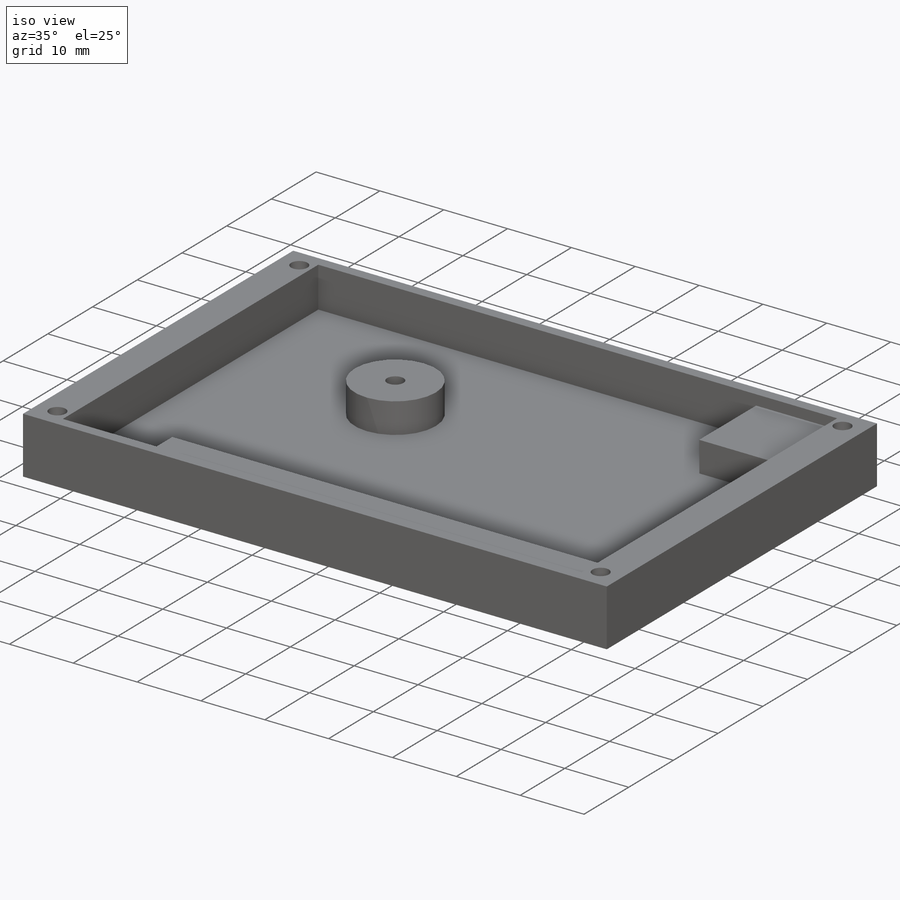
[diagram: iso view]
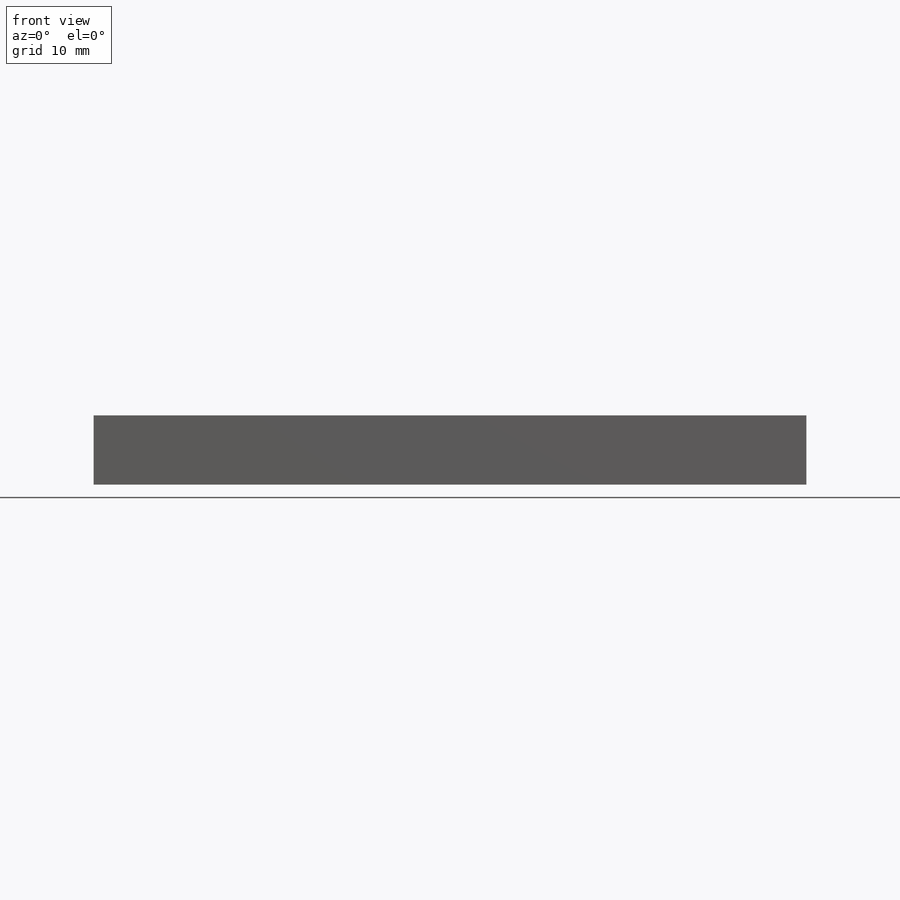
[diagram: front view]
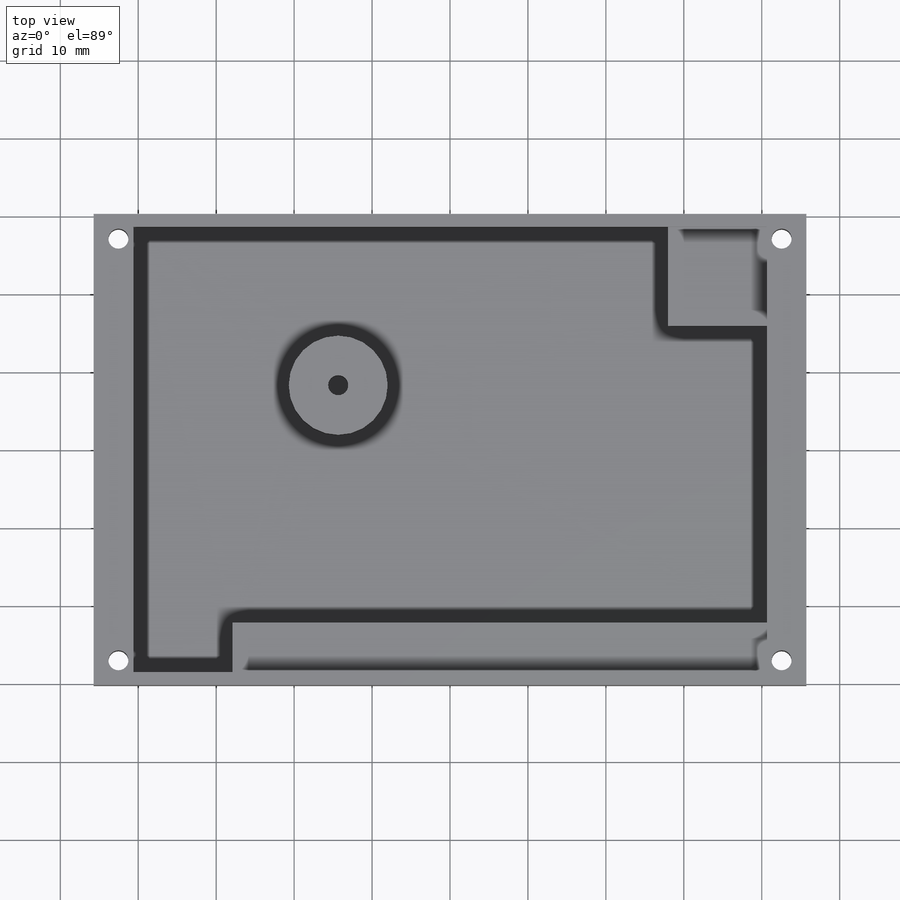
[diagram: top view]
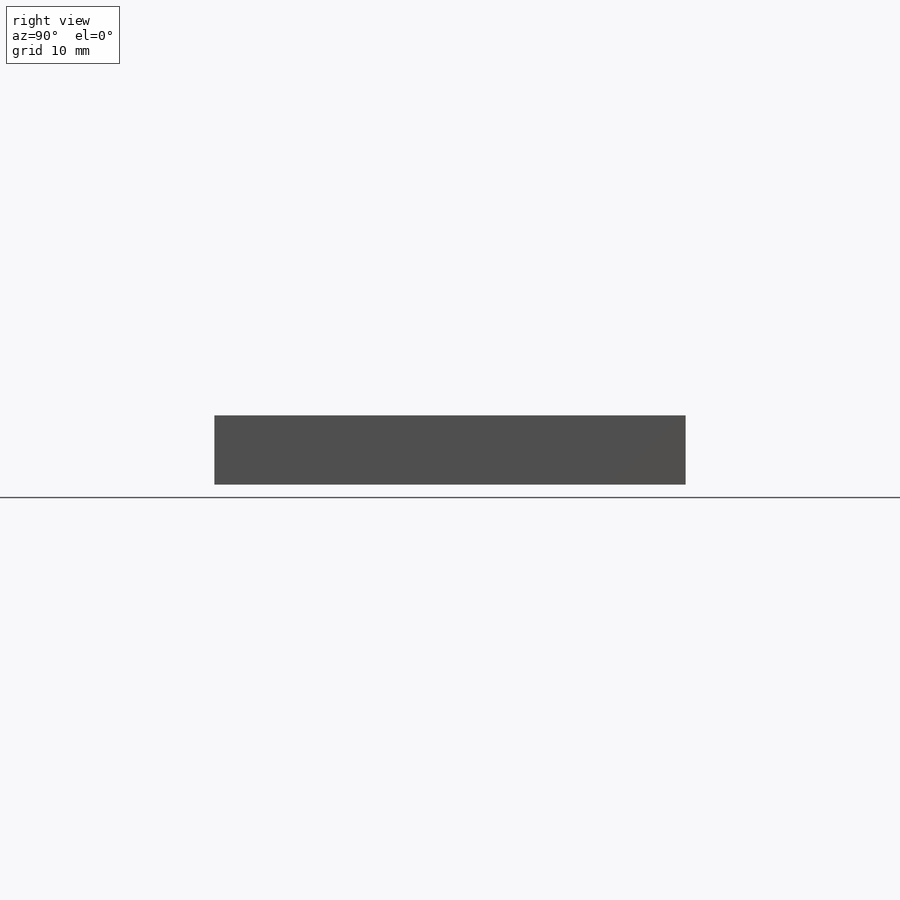
[diagram: right view]
SOLIDWORKS PART (.sldprt)
format: sldprt  version: not decoded by parser v0  size: 209,408 bytes
history: native  units: mm
features: sketch x4, cut_extrude x3, material x1, extrude x1 (+11 scaffold rows collapsed)
feature tree (20):
  scaffold x11  (default folders/planes/origin — collapsed)
  material  "Material <not specified>"
  sketch  "Sketch1"  dims[D1=60.452mm D2=91.44mm]
  extrude  "Boss-Extrude1"  Depth=8.89mm
  sketch  "Sketch2"  dims[D1=57.15mm D2=81.28mm D3=1.651mm]
  cut_extrude  "Cut-Extrude1"  Depth=1.6002mm
  sketch  "Sketch3"  dims[c1.D3=12.7mm c1.D4=2.5781mm c1.D1=6.35mm c1.D2=6.35mm c1.D5=37.719mm c1.D6=31.369mm c1.D7=12.7mm c2.D5=36.83mm c2.D1=12.7mm c2.D8=12.7mm]
  cut_extrude  "Cut-Extrude2"  Depth=2.54mm
  sketch  "Sketch4"  dims[c1.D1=2.5781mm c1.D2=2.54mm c1.D3=2.54mm c2.D2=3.175mm c2.D3=3.175mm]
  cut_extrude  "Cut-Extrude3"  [1 undecoded]
decode coverage: 7 of 8 modeling features carry decoded parameters
note: 1 parameter value undecoded
note: suppression state not decoded; provenance and decode notes live in map.json
